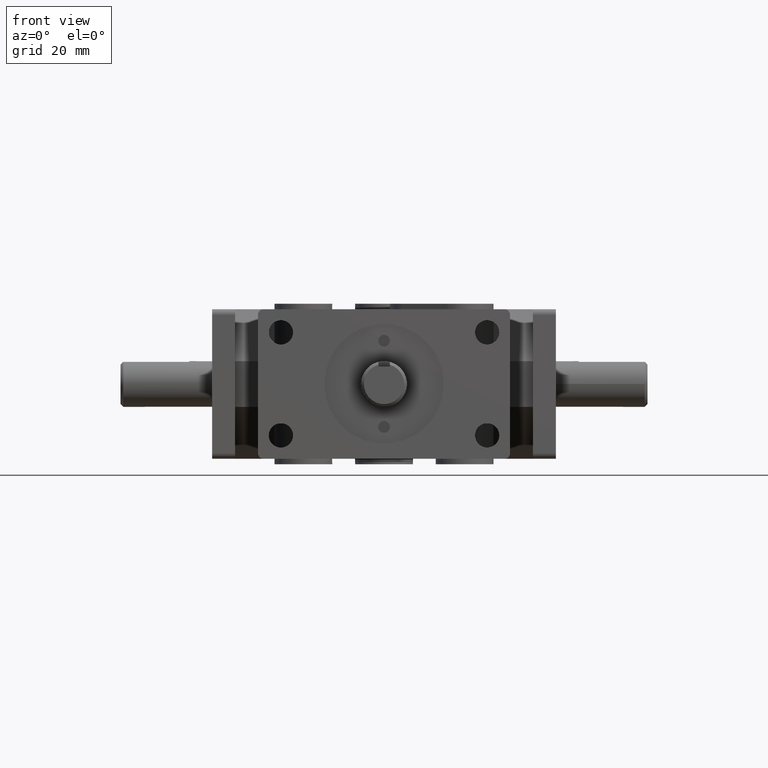
[diagram: clean part render]
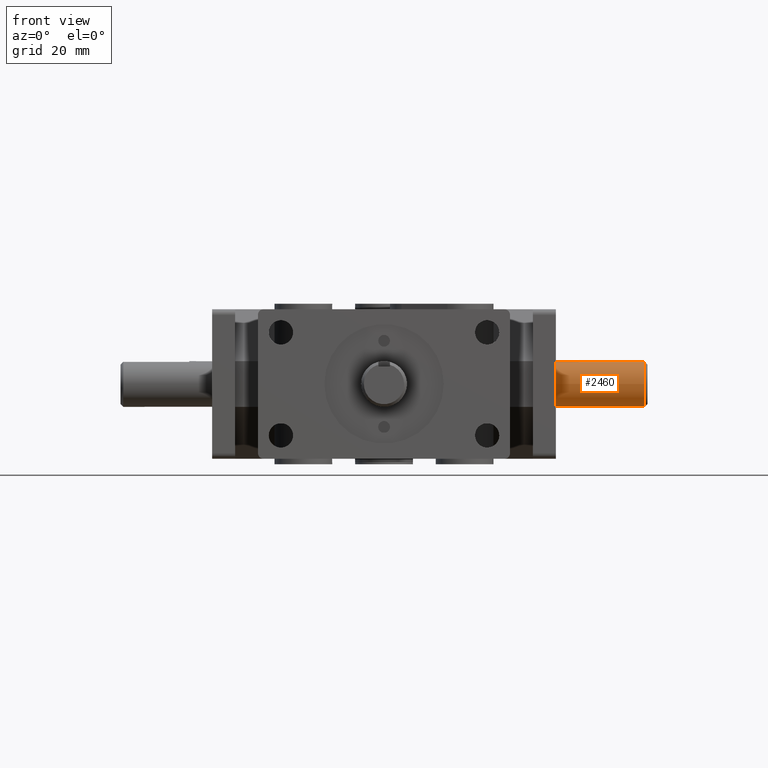
[diagram: same view with one face highlighted and labeled with its STEP entity id]
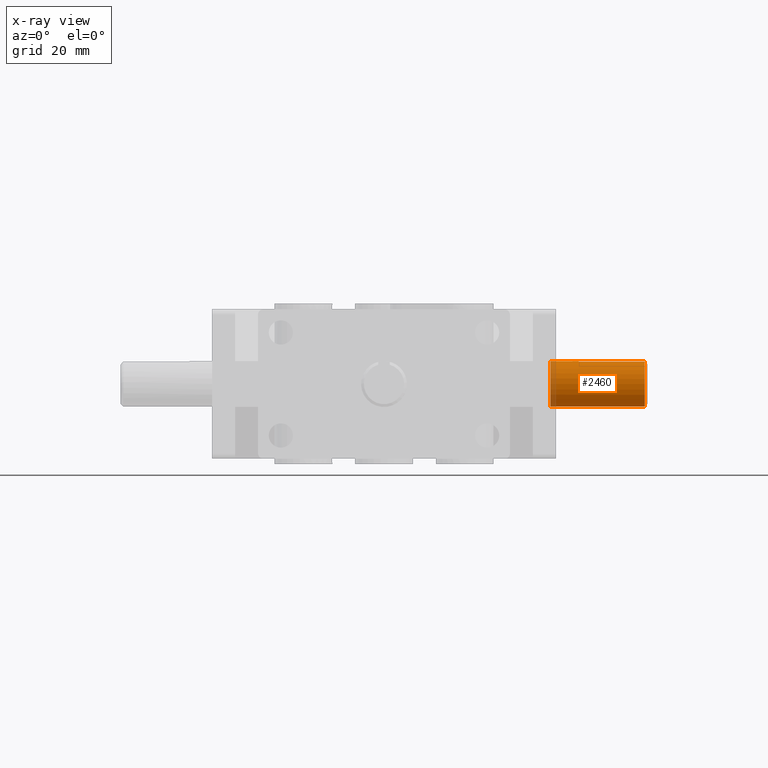
[diagram: x-ray of the same camera — body ghosted, the highlighted face saturated]
A machine part, front view. The second image highlights one B-rep face of the part: STEP entity #2460.
The next image is the same camera in x-ray: the body ghosted, the highlighted face saturated — about 6% of this face is hidden behind the body in this view.
In plain terms, the highlighted cylindrical surface (bore or boss wall) has radius 6.35 mm, axis along (1, -0, 0).
Its self-contained STEP definition (entity closure, byte-faithful):
#95=CYLINDRICAL_SURFACE('',#2710,0.25);
#142=CIRCLE('',#2602,0.25);
#200=CIRCLE('',#2707,0.25);
#201=CIRCLE('',#2708,0.25);
#202=CIRCLE('',#2711,0.25);
#302=FACE_OUTER_BOUND('',#473,.T.);
#473=EDGE_LOOP('',(#2038,#2039,#2040,#2041,#2042,#2043,#2044,#2045));
#720=LINE('',#4095,#948);
#721=LINE('',#4096,#949);
#722=LINE('',#4098,#950);
#948=VECTOR('',#3326,1.);
#949=VECTOR('',#3327,0.25);
#950=VECTOR('',#3328,1.);
#1122=VERTEX_POINT('',#3820);
#1200=VERTEX_POINT('',#4073);
#1203=VERTEX_POINT('',#4080);
#1204=VERTEX_POINT('',#4084);
#1207=VERTEX_POINT('',#4094);
#1208=VERTEX_POINT('',#4097);
#1382=EDGE_CURVE('',#1122,#1122,#142,.T.);
#1509=EDGE_CURVE('',#1203,#1204,#200,.T.);
#1510=EDGE_CURVE('',#1204,#1200,#201,.T.);
#1514=EDGE_CURVE('',#1207,#1200,#720,.T.);
#1515=EDGE_CURVE('',#1204,#1122,#721,.T.);
#1516=EDGE_CURVE('',#1203,#1208,#722,.T.);
#1517=EDGE_CURVE('',#1208,#1207,#202,.T.);
#2038=ORIENTED_EDGE('',*,*,#1514,.T.);
#2039=ORIENTED_EDGE('',*,*,#1510,.F.);
#2040=ORIENTED_EDGE('',*,*,#1515,.T.);
#2041=ORIENTED_EDGE('',*,*,#1382,.F.);
#2042=ORIENTED_EDGE('',*,*,#1515,.F.);
#2043=ORIENTED_EDGE('',*,*,#1509,.F.);
#2044=ORIENTED_EDGE('',*,*,#1516,.T.);
#2045=ORIENTED_EDGE('',*,*,#1517,.T.);
#2460=ADVANCED_FACE('',(#302),#95,.T.);
#2602=AXIS2_PLACEMENT_3D('',#3821,#3040,#3041);
#2707=AXIS2_PLACEMENT_3D('',#4085,#3315,#3316);
#2708=AXIS2_PLACEMENT_3D('',#4086,#3317,#3318);
#2710=AXIS2_PLACEMENT_3D('',#4093,#3324,#3325);
#2711=AXIS2_PLACEMENT_3D('',#4099,#3329,#3330);
#3040=DIRECTION('center_axis',(-1.,0.,0.));
#3041=DIRECTION('ref_axis',(0.,1.,0.));
#3315=DIRECTION('center_axis',(1.,-6.12303176911189E-17,0.));
#3316=DIRECTION('ref_axis',(-6.12303176911189E-17,-1.,0.));
#3317=DIRECTION('center_axis',(1.,-6.12303176911189E-17,0.));
#3318=DIRECTION('ref_axis',(-6.12303176911189E-17,-1.,0.));
#3324=DIRECTION('center_axis',(1.,-6.12303176911189E-17,0.));
#3325=DIRECTION('ref_axis',(6.12303176911189E-17,1.,0.));
#3326=DIRECTION('',(1.,-6.12303176911189E-17,0.));
#3327=DIRECTION('',(-1.,6.12303176911189E-17,0.));
#3328=DIRECTION('',(-1.,6.12303176911189E-17,0.));
#3329=DIRECTION('center_axis',(-1.,6.12303176911189E-17,0.));
#3330=DIRECTION('ref_axis',(6.12303176911189E-17,1.,0.));
#3820=CARTESIAN_POINT('',(1.815,2.625,-3.06161699786838E-17));
#3821=CARTESIAN_POINT('Origin',(1.815,2.875,0.));
#4073=CARTESIAN_POINT('',(2.845,2.9375,0.242061459137964));
#4080=CARTESIAN_POINT('',(2.845,2.8125,0.242061459137964));
#4084=CARTESIAN_POINT('',(2.845,2.625,-3.06161699786838E-17));
#4085=CARTESIAN_POINT('Origin',(2.845,2.875,0.));
#4086=CARTESIAN_POINT('Origin',(2.845,2.875,0.));
#4093=CARTESIAN_POINT('Origin',(1.875,2.875,0.));
#4094=CARTESIAN_POINT('',(2.125,2.9375,0.242061459137964));
#4095=CARTESIAN_POINT('',(1.875,2.9375,0.242061459137964));
#4096=CARTESIAN_POINT('',(1.875,2.625,-3.06161699786838E-17));
#4097=CARTESIAN_POINT('',(2.125,2.8125,0.242061459137964));
#4098=CARTESIAN_POINT('',(1.875,2.8125,0.242061459137964));
#4099=CARTESIAN_POINT('Origin',(2.125,2.875,0.));